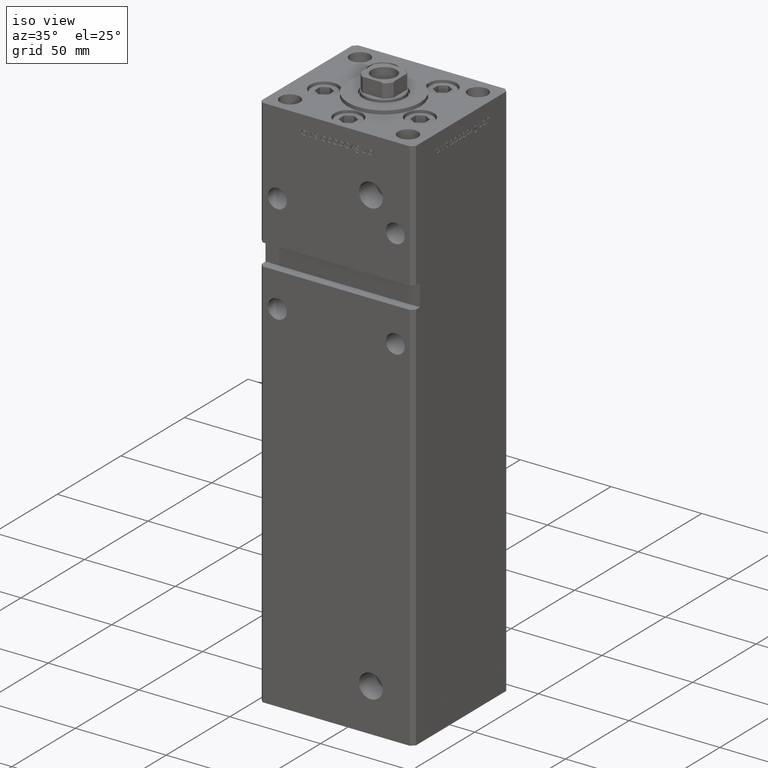
[diagram: clean part render]
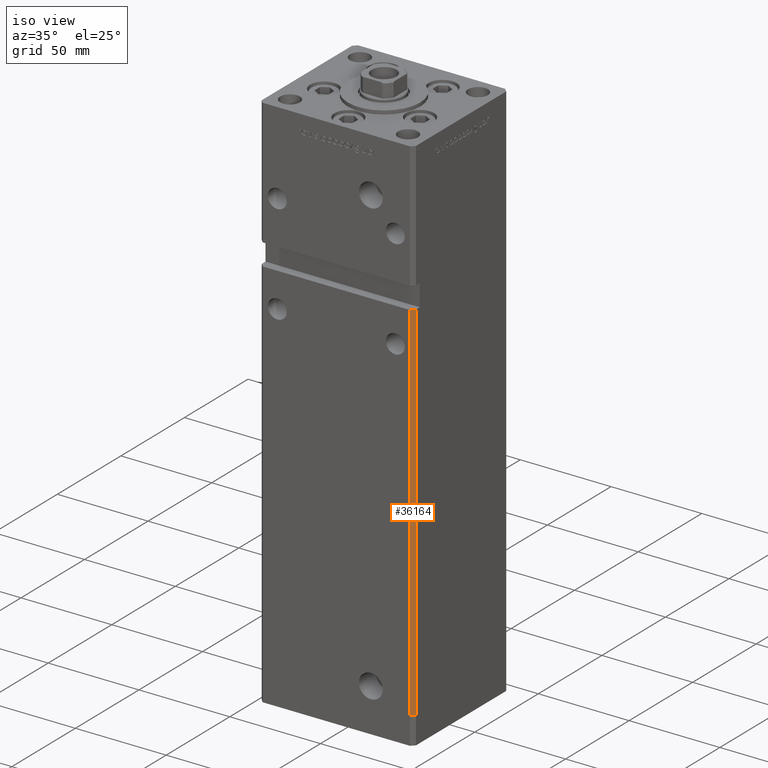
[diagram: same view with one face highlighted and labeled with its STEP entity id]
A machine part, iso view. The second image highlights one B-rep face of the part: STEP entity #36164.
In plain terms, the highlighted planar face has unit normal (0.7071, -0.7071, 0).
Its self-contained STEP definition (entity closure, byte-faithful):
#226 = VERTEX_POINT ( 'NONE', #3669 ) ;
#926 = CARTESIAN_POINT ( 'NONE',  ( 42.49999999999998579, -35.50000000000000711, 202.0000000000000000 ) ) ;
#2602 = EDGE_CURVE ( 'NONE', #48309, #48949, #46762, .T. ) ;
#3122 = VECTOR ( 'NONE', #25178, 1000.000000000000000 ) ;
#3669 = CARTESIAN_POINT ( 'NONE',  ( 40.49999999999998579, -37.50000000000000711, 0.000000000000000000 ) ) ;
#7536 = DIRECTION ( 'NONE',  ( 0.7071067811865474617, 0.7071067811865474617, 0.000000000000000000 ) ) ;
#9344 = CARTESIAN_POINT ( 'NONE',  ( 42.49999999999998579, -35.50000000000000711, 268.5000000000000000 ) ) ;
#10998 = CARTESIAN_POINT ( 'NONE',  ( 42.49999999999998579, -35.50000000000000711, 0.000000000000000000 ) ) ;
#12212 = VECTOR ( 'NONE', #51052, 1000.000000000000114 ) ;
#15889 = DIRECTION ( 'NONE',  ( 0.7071067811865475727, -0.7071067811865475727, 0.000000000000000000 ) ) ;
#16818 = CARTESIAN_POINT ( 'NONE',  ( 40.49999999999998579, -37.50000000000000711, 268.5000000000000000 ) ) ;
#19612 = CARTESIAN_POINT ( 'NONE',  ( 42.49999999999998579, -35.50000000000000711, 0.000000000000000000 ) ) ;
#21527 = EDGE_LOOP ( 'NONE', ( #27471, #33472, #41755, #37845 ) ) ;
#22287 = LINE ( 'NONE', #22825, #12212 ) ;
#22825 = CARTESIAN_POINT ( 'NONE',  ( 42.49999999999998579, -35.50000000000000711, 202.0000000000000000 ) ) ;
#25178 = DIRECTION ( 'NONE',  ( -0.000000000000000000, -0.000000000000000000, -1.000000000000000000 ) ) ;
#26072 = EDGE_CURVE ( 'NONE', #51643, #226, #29209, .T. ) ;
#27471 = ORIENTED_EDGE ( 'NONE', *, *, #52981, .F. ) ;
#27689 = EDGE_CURVE ( 'NONE', #48949, #226, #35511, .T. ) ;
#28395 = VECTOR ( 'NONE', #30093, 1000.000000000000000 ) ;
#29209 = LINE ( 'NONE', #16818, #3122 ) ;
#30093 = DIRECTION ( 'NONE',  ( -0.000000000000000000, -0.000000000000000000, -1.000000000000000000 ) ) ;
#30678 = DIRECTION ( 'NONE',  ( -0.7071067811865474617, -0.7071067811865474617, 0.000000000000000000 ) ) ;
#33472 = ORIENTED_EDGE ( 'NONE', *, *, #26072, .T. ) ;
#35511 = LINE ( 'NONE', #10998, #46182 ) ;
#35967 = AXIS2_PLACEMENT_3D ( 'NONE', #48185, #15889, #7536 ) ;
#36164 = ADVANCED_FACE ( 'NONE', ( #40132 ), #48452, .T. ) ;
#37845 = ORIENTED_EDGE ( 'NONE', *, *, #2602, .F. ) ;
#40132 = FACE_OUTER_BOUND ( 'NONE', #21527, .T. ) ;
#41755 = ORIENTED_EDGE ( 'NONE', *, *, #27689, .F. ) ;
#46182 = VECTOR ( 'NONE', #30678, 1000.000000000000114 ) ;
#46762 = LINE ( 'NONE', #9344, #28395 ) ;
#48185 = CARTESIAN_POINT ( 'NONE',  ( 42.49999999999998579, -35.50000000000000711, 268.5000000000000000 ) ) ;
#48309 = VERTEX_POINT ( 'NONE', #926 ) ;
#48452 = PLANE ( 'NONE',  #35967 ) ;
#48949 = VERTEX_POINT ( 'NONE', #19612 ) ;
#50607 = CARTESIAN_POINT ( 'NONE',  ( 40.49999999999998579, -37.50000000000000711, 202.0000000000000000 ) ) ;
#51052 = DIRECTION ( 'NONE',  ( 0.7071067811865474617, 0.7071067811865474617, 0.000000000000000000 ) ) ;
#51643 = VERTEX_POINT ( 'NONE', #50607 ) ;
#52981 = EDGE_CURVE ( 'NONE', #51643, #48309, #22287, .T. ) ;